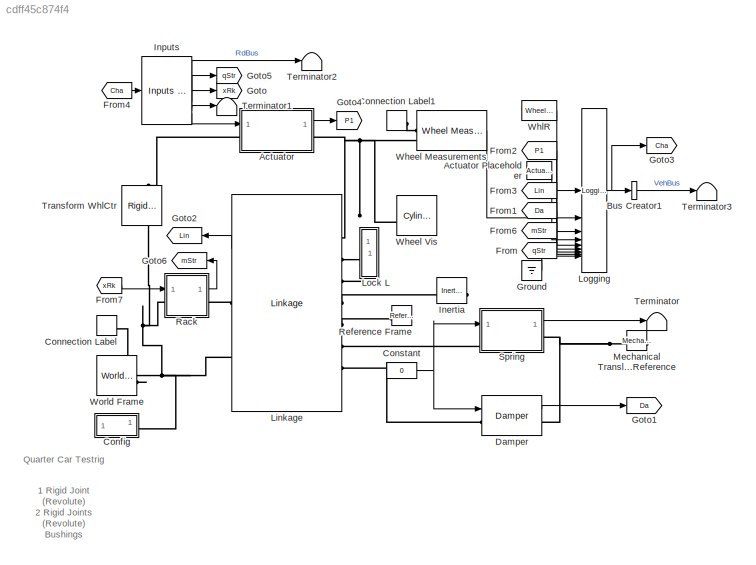
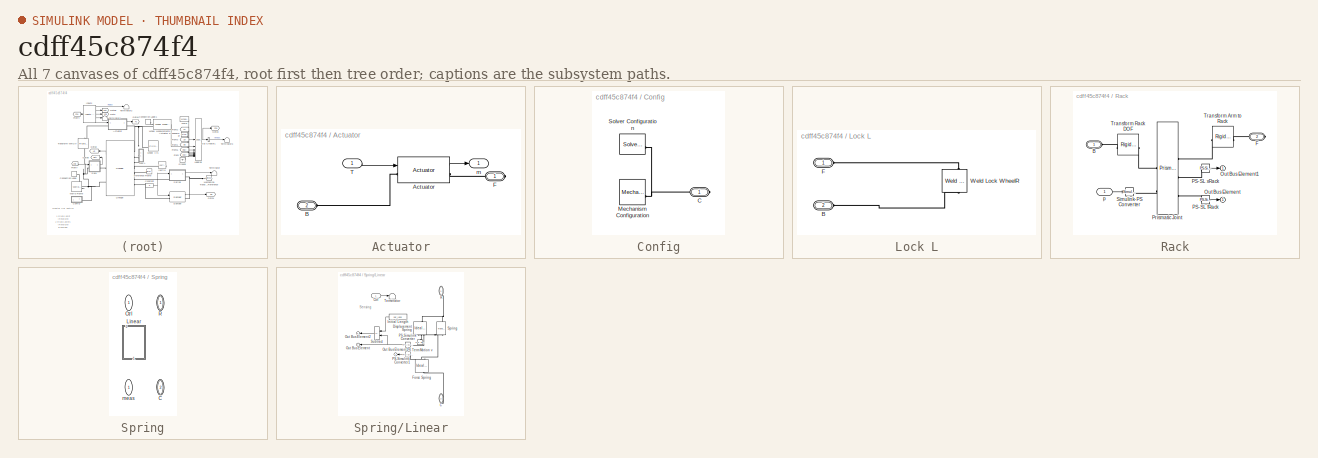
[diagram: thumbnail index - all 7 canvases of the model, root first then tree order]
MODEL slx_cdff45c874f4
KIND model
CONFIG AbsTol = 1e-3
CONFIG EnableMultiTasking = on
CONFIG FixedStep = auto
CONFIG MaxStep = 0.1
CONFIG MinStep = auto
CONFIG PostLoadFcn = Maneuver = MDatabase.KnC.FSAE_Achilles;
CONFIG RelTol = 1e-3
CONFIG SampleTimeConstraint = Unconstrained
CONFIG SolverName = ode23t
CONFIG StartTime = 0.0
CONFIG StopTime = 96
BLOCK [SubSystem] Actuator
  AncestorBlock = sm_car_testrig_utilities_lib/Actuator\nQuarter Car
BLOCK [Reference] Actuator Placeholder  REF=sm_car_testrig_utilities_lib/Actuator  (lib defined in slx_fb23fd4a23dd)
Placeholder
  SourceBlock = sm_car_testrig_utilities_lib/Actuator\nPlaceholder
  SourceType = SubSystem
BLOCK [Reference] Actuator/Actuator  REF=sm_car_testrig_utilities_lib/Actuator  (lib defined in slx_fb23fd4a23dd)
  SourceBlock = sm_car_testrig_utilities_lib/Actuator
  SourceType = KnC Actuator
BLOCK [PMIOPort] Actuator/B
  Port = 2
  Side = Left
BLOCK [PMIOPort] Actuator/F
  Side = Right
BLOCK [Inport] Actuator/T
BLOCK [Outport] Actuator/m
BLOCK [BusCreator] Bus Creator1
  DisplayOption = bar
  InheritFromInputs = on
  Inputs = 1
  NameLocation = left
BLOCK [SubSystem] Config
BLOCK [PMIOPort] Config/C
  Side = Right
BLOCK [Reference] Config/Mechanism Configuration  REF=sm_lib/Utilities/Mechanism
Configuration
  SourceBlock = sm_lib/Utilities/Mechanism\nConfiguration
  SourceType = Mechanism\nConfiguration
BLOCK [Reference] Config/Solver Configuration  REF=nesl_utility/Solver
Configuration
  SourceBlock = nesl_utility/Solver\nConfiguration
  SourceType = Solver\nConfiguration
BLOCK [ConnectionLabel] Connection Label
  Label = W
BLOCK [ConnectionLabel] Connection Label1
  Label = W
BLOCK [Constant] Constant
  Value = 0
BLOCK [Reference] Damper  REF=Damper_Element/Damper
  AttributesFormatString = %<ActiveVariant>
  SourceBlock = Damper_Element/Damper
  SourceType = Variants for Damper
BLOCK [From] From
  GotoTag = qStr
BLOCK [From] From1
  GotoTag = Da
BLOCK [From] From2
  GotoTag = P1
BLOCK [From] From3
  GotoTag = Lin
BLOCK [From] From4
  GotoTag = Cha
BLOCK [From] From6
  GotoTag = mStr
BLOCK [From] From7
  GotoTag = xRk
BLOCK [Goto] Goto
  GotoTag = xRk
BLOCK [Goto] Goto1
  GotoTag = Da
  NameLocation = top
BLOCK [Goto] Goto2
  GotoTag = Lin
  NameLocation = top
BLOCK [Goto] Goto3
  GotoTag = Cha
BLOCK [Goto] Goto4
  GotoTag = P1
BLOCK [Goto] Goto5
  GotoTag = qStr
  NameLocation = top
BLOCK [Goto] Goto6
  GotoTag = mStr
  NameLocation = top
BLOCK [Ground] Ground
BLOCK [Reference] Inertia  REF=fl_lib/Mechanical/Rotational Elements/Inertia
  NameLocation = top
  SourceBlock = fl_lib/Mechanical/Rotational Elements/Inertia
  SourceType = Inertia
BLOCK [Reference] Inputs  REF=sm_car_testrig_utilities_lib/Inputs Quarter Car  (lib defined in slx_fb23fd4a23dd)
  NameLocation = top
  SourceBlock = sm_car_testrig_utilities_lib/Inputs Quarter Car
BLOCK [Reference] Linkage  REF=Linkage_Systems/Linkage
  AttributesFormatString = %<ActiveVariant>\n%<popup_leftRight>
  SourceBlock = Linkage_Systems/Linkage
  SourceType = Linkage
BLOCK [SubSystem] Lock L
  NameLocation = right
BLOCK [PMIOPort] Lock L/B
  Port = 2
  Side = Left
BLOCK [PMIOPort] Lock L/F
  Side = Left
BLOCK [Reference] Lock L/Weld Lock WheelR  REF=sm_lib/Joints/Weld Joint
  NameLocation = right
  SourceBlock = sm_lib/Joints/Weld Joint
  SourceType = Weld Joint
BLOCK [Reference] Logging  REF=sm_car_testrig_utilities_lib/Logging  (lib defined in slx_fb23fd4a23dd)
Quarter Car
  SourceBlock = sm_car_testrig_utilities_lib/Logging\nQuarter Car
  SourceType = Logging Structure
BLOCK [Reference] Mechanical Translational Reference  REF=fl_lib/Mechanical/Translational
Elements/Mechanical
Translational
Reference
  NameLocation = top
  SourceBlock = fl_lib/Mechanical/Translational\nElements/Mechanical\nTranslational\nReference
  SourceType = Mechanical\nTranslational\nReference
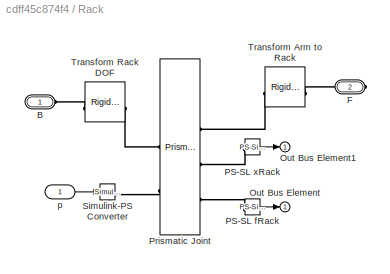
BLOCK [SubSystem] Rack
BLOCK [PMIOPort] Rack/B
  Side = Left
BLOCK [PMIOPort] Rack/F
  Port = 2
  Side = Right
BLOCK [Outport] Rack/Out Bus Element
  VectorParamsAs1DForOutWhenUnconnected = off
BLOCK [Outport] Rack/Out Bus Element1
  VectorParamsAs1DForOutWhenUnconnected = off
BLOCK [Reference] Rack/PS-SL fRack  REF=nesl_utility/PS-Simulink
Converter
  SourceBlock = nesl_utility/PS-Simulink\nConverter
  SourceType = PS-Simulink\nConverter
BLOCK [Reference] Rack/PS-SL xRack  REF=nesl_utility/PS-Simulink
Converter
  SourceBlock = nesl_utility/PS-Simulink\nConverter
  SourceType = PS-Simulink\nConverter
BLOCK [Reference] Rack/Prismatic Joint  REF=sm_lib/Joints/Prismatic
Joint
  SourceBlock = sm_lib/Joints/Prismatic\nJoint
  SourceType = Prismatic\nJoint
BLOCK [Reference] Rack/Simulink-PS Converter  REF=nesl_utility/Simulink-PS
Converter
  SourceBlock = nesl_utility/Simulink-PS\nConverter
  SourceType = Simulink-PS\nConverter
BLOCK [Reference] Rack/Transform Arm to Rack  REF=sm_lib/Frames and
Transforms/Rigid
Transform
  SourceBlock = sm_lib/Frames and\nTransforms/Rigid\nTransform
  SourceType = Rigid\nTransform
BLOCK [Reference] Rack/Transform Rack DOF  REF=sm_lib/Frames and
Transforms/Rigid
Transform
  SourceBlock = sm_lib/Frames and\nTransforms/Rigid\nTransform
  SourceType = Rigid\nTransform
BLOCK [Inport] Rack/p
BLOCK [Reference] Reference Frame  REF=sm_lib/Frames and
Transforms/Reference
Frame
  SourceBlock = sm_lib/Frames and\nTransforms/Reference\nFrame
  SourceType = Reference\nFrame
BLOCK [SubSystem] Spring
  AttributesFormatString = %<ActiveVariant>
  LabelModeActiveChoice = Linear
  Variant = on
  VariantControl = Variant1
  VariantControlMode = label
BLOCK [PMIOPort] Spring/ C
  NameLocation = left
  Port = 2
  Side = Right
BLOCK [PMIOPort] Spring/ R
  NameLocation = left
  Side = Left
BLOCK [Outport] Spring/ meas
  NameLocation = left
  VectorParamsAs1DForOutWhenUnconnected = off
BLOCK [Inport] Spring/Ctrl 
  NameLocation = left
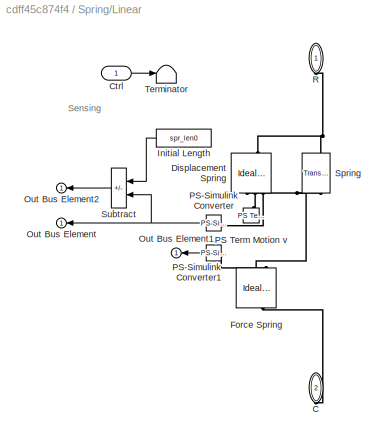
BLOCK [SubSystem] Spring/Linear
  NameLocation = right
  VariantControl = Linear
BLOCK [PMIOPort] Spring/Linear/C
  NameLocation = right
  Port = 2
  Side = Right
BLOCK [Inport] Spring/Linear/Ctrl
BLOCK [Reference] Spring/Linear/Displacement Spring  REF=fl_lib/Mechanical/Mechanical Sensors/Ideal Translational
Motion Sensor
  NameLocation = left
  SourceBlock = fl_lib/Mechanical/Mechanical Sensors/Ideal Translational\nMotion Sensor
  SourceType = Ideal Translational\nMotion Sensor
BLOCK [Reference] Spring/Linear/Force Spring  REF=fl_lib/Mechanical/Mechanical Sensors/Ideal Force Sensor
  NameLocation = left
  SourceBlock = fl_lib/Mechanical/Mechanical Sensors/Ideal Force Sensor
  SourceType = Ideal Force Sensor
BLOCK [Constant] Spring/Linear/Initial Length
  NameLocation = top
  Value = spr_len0
BLOCK [Outport] Spring/Linear/Out Bus Element
  NameLocation = top
  VectorParamsAs1DForOutWhenUnconnected = off
BLOCK [Outport] Spring/Linear/Out Bus Element1
  NameLocation = top
  VectorParamsAs1DForOutWhenUnconnected = off
BLOCK [Outport] Spring/Linear/Out Bus Element2
  NameLocation = top
  VectorParamsAs1DForOutWhenUnconnected = off
BLOCK [Reference] Spring/Linear/PS Term Motion v  REF=fl_lib/Physical Signals/Sinks/PS Terminator
  NameLocation = right
  SourceBlock = fl_lib/Physical Signals/Sinks/PS Terminator
  SourceType = PS Terminator
BLOCK [Reference] Spring/Linear/PS-Simulink Converter  REF=nesl_utility/PS-Simulink
Converter
  NameLocation = top
  SourceBlock = nesl_utility/PS-Simulink\nConverter
  SourceType = PS-Simulink\nConverter
BLOCK [Reference] Spring/Linear/PS-Simulink Converter1  REF=nesl_utility/PS-Simulink
Converter
  NameLocation = top
  SourceBlock = nesl_utility/PS-Simulink\nConverter
  SourceType = PS-Simulink\nConverter
BLOCK [PMIOPort] Spring/Linear/R
  NameLocation = right
  Side = Left
BLOCK [Reference] Spring/Linear/Spring  REF=fl_lib/Mechanical/Translational
Elements/Translational Spring
  NameLocation = right
  SourceBlock = fl_lib/Mechanical/Translational\nElements/Translational Spring
  SourceType = Translational Spring
BLOCK [Sum] Spring/Linear/Subtract
  IconShape = rectangular
  Inputs = -+
BLOCK [Terminator] Spring/Linear/Terminator
BLOCK [Terminator] Terminator
BLOCK [Terminator] Terminator1
BLOCK [Terminator] Terminator2
  NameLocation = top
BLOCK [Terminator] Terminator3
BLOCK [Reference] Transform WhlCtr  REF=sm_lib/Frames and
Transforms/Rigid
Transform
  NameLocation = right
  SourceBlock = sm_lib/Frames and\nTransforms/Rigid\nTransform
  SourceType = Rigid\nTransform
BLOCK [Reference] Wheel Measurements  REF=Suspension_Utilities/Wheel Measurements
  AttributesFormatString = %<popup_leftRight>
  SourceBlock = Suspension_Utilities/Wheel Measurements
  SourceProductName = SmCar - Suspension Utilites
  SourceType = Wheel Measurements
BLOCK [Reference] Wheel Vis  REF=sm_lib/Body Elements/Cylindrical Solid
  NameLocation = top
  SourceBlock = sm_lib/Body Elements/Cylindrical Solid
  SourceType = Cylindrical Solid
BLOCK [Reference] WhlR  REF=sm_car_testrig_utilities_lib/Wheel Measurements  (lib defined in slx_fb23fd4a23dd)
Placeholder
  NameLocation = top
  SourceBlock = sm_car_testrig_utilities_lib/Wheel Measurements\nPlaceholder
  SourceType = SubSystem
BLOCK [Reference] World Frame  REF=sm_lib/Frames and
Transforms/World Frame
  SourceBlock = sm_lib/Frames and\nTransforms/World Frame
  SourceType = World Frame
ANNOTATION (root): ​ 1 Rigid Joint (Revolute) 2 Rigid Joints (Revolute) Bushings (Adds complience) Chassis Connection Select Select Select 1. Update data 2. Plot toe and camber angles ( see code ) 3. Show suspension metrics ( see code ) .... with details 4. Plot KnC test sequence 5. Set side: Left , Right 6. Set axle: Front , Rear 7. Explore simulation results using sscexplore 8. Open Suspension Tester App 9. Learn ...<+23ch>
ANNOTATION (root): Quarter Car Testrig
ANNOTATION Spring/Linear: Sensing
LINE Actuator Placeholder:1 -> Logging:4
LINE Actuator:1 -> Goto4:1
LINE Bus Creator1:1 -> Terminator3:1
NET Constant:1 -> Damper:1, Spring:1
LINE Damper:1 -> Goto1:1
LINE From1:1 -> Logging:6
LINE From2:1 -> Logging:3
LINE From3:1 -> Logging:5
LINE From4:1 -> Inputs:1
LINE From6:1 -> Logging:7
LINE From7:1 -> Rack:1
LINE From:1 -> Logging:8
LINE Ground:1 -> Logging:9
LINE Inputs:1 -> Terminator2:1
LINE Inputs:2 -> Goto5:1
LINE Inputs:3 -> Goto:1
LINE Inputs:4 -> Terminator1:1
LINE Inputs:5 -> Actuator:1
LINE Linkage:1 -> Goto2:1
NET Logging:1 -> Bus Creator1:1, Goto3:1
LINE Rack/PS-SL fRack:1 -> Rack/Out Bus Element:1
LINE Rack/PS-SL xRack:1 -> Rack/Out Bus Element1:1
LINE Rack/p:1 -> Rack/Simulink-PS Converter:1
LINE Rack:1 -> Goto6:1
LINE Spring:1 -> Terminator:1
LINE Wheel Measurements:1 -> Logging:2
LINE WhlR:1 -> Logging:1
PLINE Actuator:LConn1 -- Transform WhlCtr:RConn1
PNET net1: Actuator:RConn1 -- Linkage:LConn1 -- Wheel Measurements:LConn2 -- Wheel Vis:RConn1
PNET net2: Config/C:RConn1 -- Config/Mechanism Configuration:RConn1 -- Config/Solver Configuration:RConn1
PNET net3: Config:RConn1 -- Connection Label:LConn1 -- Linkage:RConn2 -- Rack:LConn1 -- Transform WhlCtr:LConn1 -- World Frame:RConn1
PLINE Connection Label1:LConn1 -- Wheel Measurements:LConn1
PLINE Damper:LConn1 -- Linkage:LConn7
PNET net4: Damper:RConn1 -- Mechanical Translational Reference:LConn1 -- Spring:RConn1
PLINE Inertia:LConn1 -- Linkage:LConn4
PLINE Linkage:LConn2 -- Lock L:LConn1
PLINE Linkage:LConn3 -- Lock L:LConn2
PLINE Linkage:LConn5 -- Reference Frame:RConn1
PLINE Linkage:LConn6 -- Spring:LConn1
PLINE Linkage:RConn1 -- Rack:RConn1
PLINE Lock L/B:RConn1 -- Lock L/Weld Lock WheelR:LConn1
PLINE Lock L/F:RConn1 -- Lock L/Weld Lock WheelR:RConn1
PLINE Rack/B:RConn1 -- Rack/Transform Rack DOF:LConn1
PLINE Rack/F:RConn1 -- Rack/Transform Arm to Rack:LConn1
PLINE Rack/PS-SL fRack:LConn1 -- Rack/Prismatic Joint:RConn3
PLINE Rack/PS-SL xRack:LConn1 -- Rack/Prismatic Joint:RConn2
PLINE Rack/Prismatic Joint:LConn1 -- Rack/Transform Rack DOF:RConn1
PLINE Rack/Prismatic Joint:LConn2 -- Rack/Simulink-PS Converter:RConn1
PLINE Rack/Prismatic Joint:RConn1 -- Rack/Transform Arm to Rack:RConn1
note: NET lines group one-source signal fan-out (src -> all destinations, sorted); 1:1 wires keep LINE; PNET lines group multi-terminal physical nets as a canonical sorted terminal list (undirected conserving connections); 2-terminal nets keep the pairwise PLINE form
